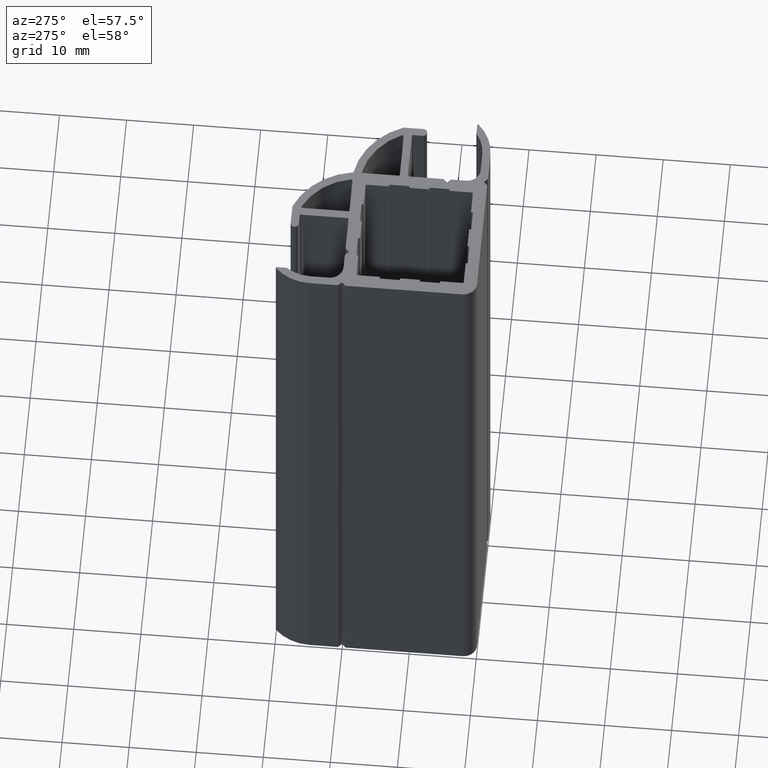
[diagram: clean part render]
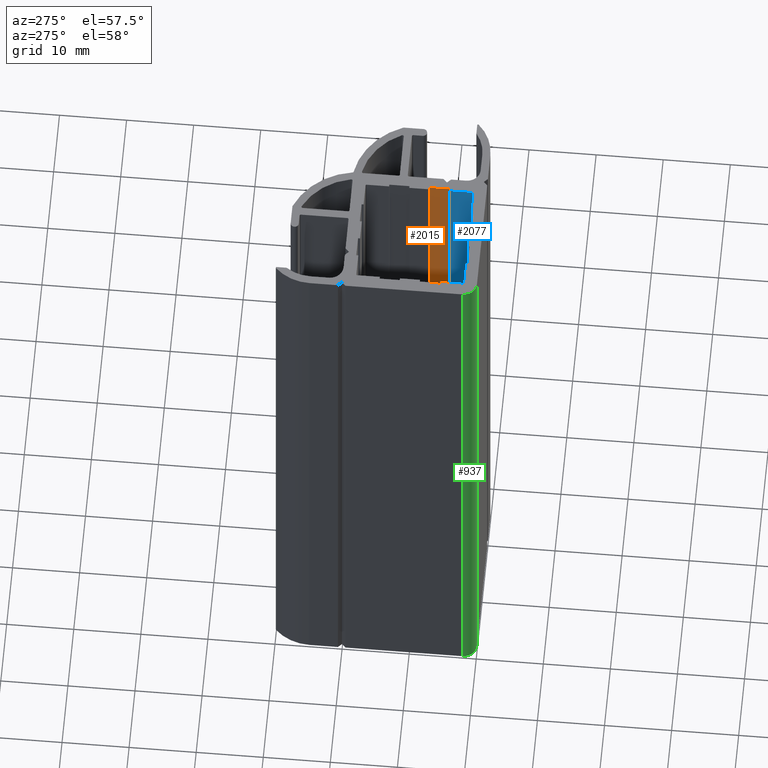
[diagram: same view with three faces highlighted in distinct colors, each labeled with its STEP entity id]
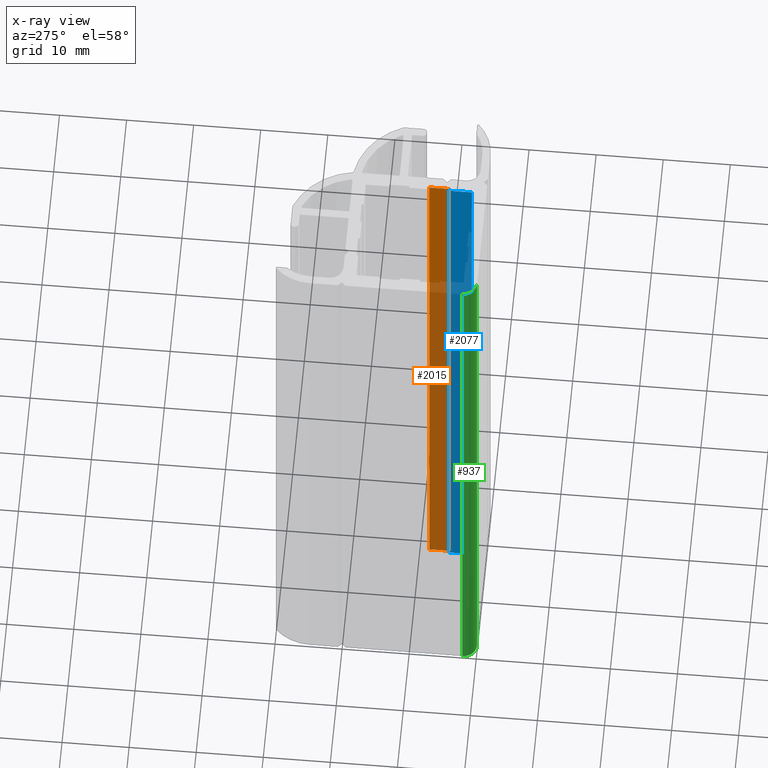
[diagram: x-ray of the same camera — body ghosted, the three highlighted faces saturated]
A machine part, auxiliary view with three faces highlighted in distinct colors.
The next image is the same camera in x-ray (body ghosted, the three faces saturated) — at least one of them is partly hidden behind the body in this view.
Their STEP definitions:

[orange] entity #2015 — the highlighted planar face has unit normal (-1, 0, 0).
#1959=CARTESIAN_POINT('',(7.582842712474985,8.500000000000000,0.0));
#1960=VERTEX_POINT('',#1959);
#1967=CARTESIAN_POINT('',(7.582842712474985,8.500000000000000,100.0));
#1968=VERTEX_POINT('',#1967);
#1969=CARTESIAN_POINT('',(7.582842712474985,8.500000000000000,0.0));
#1970=DIRECTION('',(0.0,0.0,1.0));
#1971=VECTOR('',#1970,100.0);
#1972=LINE('',#1969,#1971);
#1973=EDGE_CURVE('',#1960,#1968,#1972,.T.);
#1985=CARTESIAN_POINT('',(7.582842712474985,8.500000000000000,0.0));
#1986=DIRECTION('',(-1.0,0.0,0.0));
#1987=DIRECTION('',(0.0,-1.0,0.0));
#1988=AXIS2_PLACEMENT_3D('',#1985,#1986,#1987);
#1989=PLANE('',#1988);
#1990=CARTESIAN_POINT('',(7.582842712474985,5.500000000000000,0.0));
#1991=VERTEX_POINT('',#1990);
#1992=CARTESIAN_POINT('',(7.582842712474985,8.500000000000000,0.0));
#1993=DIRECTION('',(0.0,-1.0,0.0));
#1994=VECTOR('',#1993,3.0);
#1995=LINE('',#1992,#1994);
#1996=EDGE_CURVE('',#1960,#1991,#1995,.T.);
#1997=ORIENTED_EDGE('',*,*,#1996,.T.);
#1998=CARTESIAN_POINT('',(7.582842712474985,5.500000000000000,100.0));
#1999=VERTEX_POINT('',#1998);
#2000=CARTESIAN_POINT('',(7.582842712474985,5.500000000000000,0.0));
#2001=DIRECTION('',(0.0,0.0,1.0));
#2002=VECTOR('',#2001,100.0);
#2003=LINE('',#2000,#2002);
#2004=EDGE_CURVE('',#1991,#1999,#2003,.T.);
#2005=ORIENTED_EDGE('',*,*,#2004,.T.);
#2006=CARTESIAN_POINT('',(7.582842712474985,8.500000000000000,100.0));
#2007=DIRECTION('',(0.0,-1.0,0.0));
#2008=VECTOR('',#2007,3.0);
#2009=LINE('',#2006,#2008);
#2010=EDGE_CURVE('',#1968,#1999,#2009,.T.);
#2011=ORIENTED_EDGE('',*,*,#2010,.F.);
#2012=ORIENTED_EDGE('',*,*,#1973,.F.);
#2013=EDGE_LOOP('',(#1997,#2005,#2011,#2012));
#2014=FACE_OUTER_BOUND('',#2013,.T.);
#2015=ADVANCED_FACE('',(#2014),#1989,.T.);

[blue] entity #2077 — the highlighted planar face has unit normal (-1, 0, 0).
#2021=CARTESIAN_POINT('',(7.282842712473894,5.500000000000000,0.0));
#2022=VERTEX_POINT('',#2021);
#2029=CARTESIAN_POINT('',(7.282842712473894,5.500000000000000,100.0));
#2030=VERTEX_POINT('',#2029);
#2031=CARTESIAN_POINT('',(7.282842712473894,5.500000000000000,0.0));
#2032=DIRECTION('',(0.0,0.0,1.0));
#2033=VECTOR('',#2032,100.0);
#2034=LINE('',#2031,#2033);
#2035=EDGE_CURVE('',#2022,#2030,#2034,.T.);
#2047=CARTESIAN_POINT('',(7.282842712473894,5.500000000000000,0.0));
#2048=DIRECTION('',(-1.0,0.0,0.0));
#2049=DIRECTION('',(0.0,-1.0,0.0));
#2050=AXIS2_PLACEMENT_3D('',#2047,#2048,#2049);
#2051=PLANE('',#2050);
#2052=CARTESIAN_POINT('',(7.282842712475031,2.160000000000082,0.0));
#2053=VERTEX_POINT('',#2052);
#2054=CARTESIAN_POINT('',(7.282842712473894,5.500000000000000,0.0));
#2055=DIRECTION('',(0.0,-1.0,0.0));
#2056=VECTOR('',#2055,3.339999999999918);
#2057=LINE('',#2054,#2056);
#2058=EDGE_CURVE('',#2022,#2053,#2057,.T.);
#2059=ORIENTED_EDGE('',*,*,#2058,.T.);
#2060=CARTESIAN_POINT('',(7.282842712475031,2.160000000000082,100.0));
#2061=VERTEX_POINT('',#2060);
#2062=CARTESIAN_POINT('',(7.282842712475031,2.160000000000082,0.0));
#2063=DIRECTION('',(0.0,0.0,1.0));
#2064=VECTOR('',#2063,100.0);
#2065=LINE('',#2062,#2064);
#2066=EDGE_CURVE('',#2053,#2061,#2065,.T.);
#2067=ORIENTED_EDGE('',*,*,#2066,.T.);
#2068=CARTESIAN_POINT('',(7.282842712473894,5.500000000000000,100.0));
#2069=DIRECTION('',(0.0,-1.0,0.0));
#2070=VECTOR('',#2069,3.339999999999918);
#2071=LINE('',#2068,#2070);
#2072=EDGE_CURVE('',#2030,#2061,#2071,.T.);
#2073=ORIENTED_EDGE('',*,*,#2072,.F.);
#2074=ORIENTED_EDGE('',*,*,#2035,.F.);
#2075=EDGE_LOOP('',(#2059,#2067,#2073,#2074));
#2076=FACE_OUTER_BOUND('',#2075,.T.);
#2077=ADVANCED_FACE('',(#2076),#2051,.T.);

[green] entity #937 — the highlighted cylindrical surface (edge-blend (fillet) strip) has radius 2 mm, axis along (0, 0, 1).
#879=CARTESIAN_POINT('',(-10.717157287524969,2.0,0.0));
#880=VERTEX_POINT('',#879);
#887=CARTESIAN_POINT('',(-10.717157287524969,2.0,100.0));
#888=VERTEX_POINT('',#887);
#889=CARTESIAN_POINT('',(-10.717157287524969,2.0,0.0));
#890=DIRECTION('',(0.0,0.0,1.0));
#891=VECTOR('',#890,100.0);
#892=LINE('',#889,#891);
#893=EDGE_CURVE('',#880,#888,#892,.T.);
#905=CARTESIAN_POINT('',(-8.717157287524969,2.0,0.0));
#906=DIRECTION('',(0.0,0.0,1.0));
#907=DIRECTION('',(1.0,0.0,0.0));
#908=AXIS2_PLACEMENT_3D('',#905,#906,#907);
#909=CYLINDRICAL_SURFACE('',#908,2.0);
#910=CARTESIAN_POINT('',(-8.717157287524969,0.0,0.0));
#911=VERTEX_POINT('',#910);
#912=CARTESIAN_POINT('',(-8.717157287524969,2.0,0.0));
#913=DIRECTION('',(0.0,0.0,1.0));
#914=DIRECTION('',(1.0,0.0,0.0));
#915=AXIS2_PLACEMENT_3D('',#912,#913,#914);
#916=CIRCLE('',#915,2.0);
#917=EDGE_CURVE('',#880,#911,#916,.T.);
#918=ORIENTED_EDGE('',*,*,#917,.T.);
#919=CARTESIAN_POINT('',(-8.717157287524969,0.0,100.0));
#920=VERTEX_POINT('',#919);
#921=CARTESIAN_POINT('',(-8.717157287524969,0.0,0.0));
#922=DIRECTION('',(0.0,0.0,1.0));
#923=VECTOR('',#922,100.0);
#924=LINE('',#921,#923);
#925=EDGE_CURVE('',#911,#920,#924,.T.);
#926=ORIENTED_EDGE('',*,*,#925,.T.);
#927=CARTESIAN_POINT('',(-8.717157287524969,2.0,100.0));
#928=DIRECTION('',(0.0,0.0,1.0));
#929=DIRECTION('',(1.0,0.0,0.0));
#930=AXIS2_PLACEMENT_3D('',#927,#928,#929);
#931=CIRCLE('',#930,2.0);
#932=EDGE_CURVE('',#888,#920,#931,.T.);
#933=ORIENTED_EDGE('',*,*,#932,.F.);
#934=ORIENTED_EDGE('',*,*,#893,.F.);
#935=EDGE_LOOP('',(#918,#926,#933,#934));
#936=FACE_OUTER_BOUND('',#935,.T.);
#937=ADVANCED_FACE('',(#936),#909,.T.);